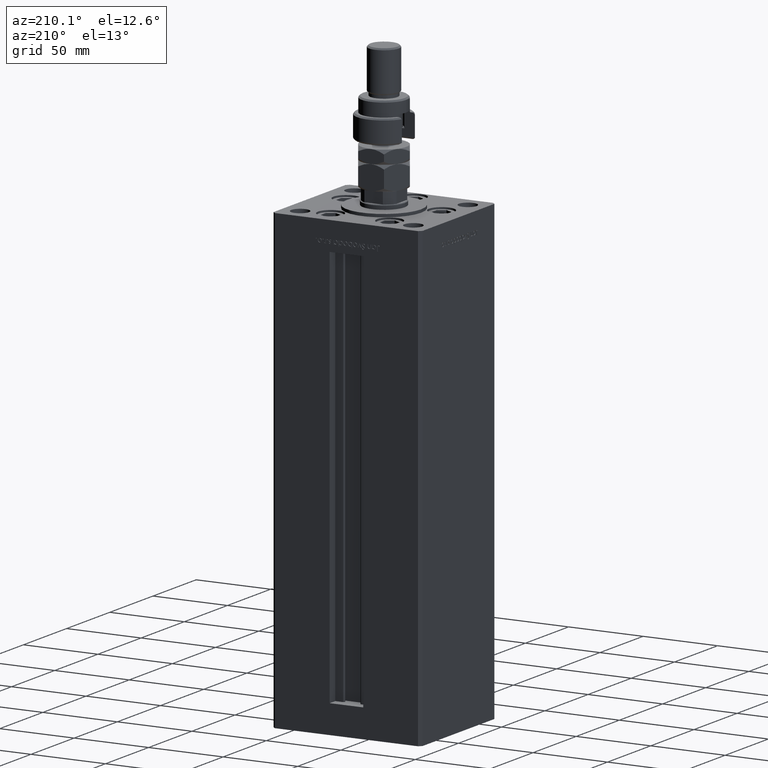
[diagram: clean part render]
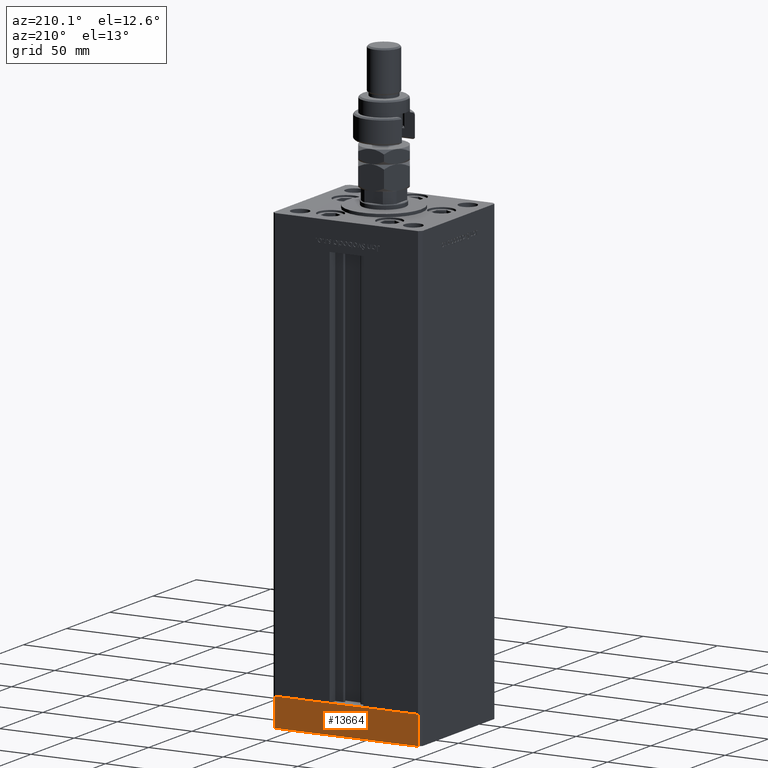
[diagram: same view with one face highlighted and labeled with its STEP entity id]
A machine part, auxiliary view. The second image highlights one B-rep face of the part: STEP entity #13664.
In plain terms, the highlighted planar face has unit normal (0, 1, 0).
Its self-contained STEP definition (entity closure, byte-faithful):
#1109 = VERTEX_POINT ( 'NONE', #46356 ) ;
#3009 = CARTESIAN_POINT ( 'NONE',  ( 47.99999999999990763, 43.50000000000000000, 0.000000000000000000 ) ) ;
#6971 = ORIENTED_EDGE ( 'NONE', *, *, #50419, .T. ) ;
#7246 = DIRECTION ( 'NONE',  ( 0.000000000000000000, 0.000000000000000000, 1.000000000000000000 ) ) ;
#8392 = DIRECTION ( 'NONE',  ( 0.000000000000000000, 0.000000000000000000, 1.000000000000000000 ) ) ;
#10162 = DIRECTION ( 'NONE',  ( -1.000000000000000000, -3.614007241618350743E-16, 0.000000000000000000 ) ) ;
#10446 = EDGE_LOOP ( 'NONE', ( #10916, #43528, #41807, #6971 ) ) ;
#10916 = ORIENTED_EDGE ( 'NONE', *, *, #13170, .F. ) ;
#11150 = DIRECTION ( 'NONE',  ( -1.000000000000000000, -3.614007241618350743E-16, 0.000000000000000000 ) ) ;
#12725 = VECTOR ( 'NONE', #7246, 1000.000000000000000 ) ;
#13170 = EDGE_CURVE ( 'NONE', #1109, #22516, #23921, .T. ) ;
#13664 = ADVANCED_FACE ( 'NONE', ( #21884 ), #52443, .T. ) ;
#15613 = LINE ( 'NONE', #41176, #28782 ) ;
#15662 = LINE ( 'NONE', #54302, #31486 ) ;
#16111 = DIRECTION ( 'NONE',  ( -1.000000000000000000, -3.614007241618350743E-16, 0.000000000000000000 ) ) ;
#17417 = CARTESIAN_POINT ( 'NONE',  ( 47.99999999999990763, 43.50000000000000000, -19.00000000000000000 ) ) ;
#17905 = VERTEX_POINT ( 'NONE', #17417 ) ;
#21884 = FACE_OUTER_BOUND ( 'NONE', #10446, .T. ) ;
#22231 = EDGE_CURVE ( 'NONE', #17905, #53687, #15613, .T. ) ;
#22516 = VERTEX_POINT ( 'NONE', #23608 ) ;
#23608 = CARTESIAN_POINT ( 'NONE',  ( -48.00000000000000711, 43.49999999999996447, 0.000000000000000000 ) ) ;
#23921 = LINE ( 'NONE', #3009, #42778 ) ;
#26610 = CARTESIAN_POINT ( 'NONE',  ( 47.99999999999990763, 43.50000000000000000, -19.00000000000000000 ) ) ;
#27883 = CARTESIAN_POINT ( 'NONE',  ( 47.99999999999990763, 43.50000000000000000, -19.00000000000000000 ) ) ;
#28782 = VECTOR ( 'NONE', #11150, 1000.000000000000000 ) ;
#31486 = VECTOR ( 'NONE', #8392, 1000.000000000000000 ) ;
#35507 = DIRECTION ( 'NONE',  ( -3.614007241618350743E-16, 1.000000000000000000, 0.000000000000000000 ) ) ;
#38392 = AXIS2_PLACEMENT_3D ( 'NONE', #26610, #35507, #10162 ) ;
#41176 = CARTESIAN_POINT ( 'NONE',  ( 47.99999999999990763, 43.50000000000000000, -19.00000000000000000 ) ) ;
#41807 = ORIENTED_EDGE ( 'NONE', *, *, #22231, .T. ) ;
#42778 = VECTOR ( 'NONE', #16111, 1000.000000000000000 ) ;
#43528 = ORIENTED_EDGE ( 'NONE', *, *, #48247, .F. ) ;
#46356 = CARTESIAN_POINT ( 'NONE',  ( 47.99999999999990763, 43.50000000000000000, 0.000000000000000000 ) ) ;
#47668 = CARTESIAN_POINT ( 'NONE',  ( -48.00000000000000711, 43.49999999999996447, -19.00000000000000000 ) ) ;
#48247 = EDGE_CURVE ( 'NONE', #17905, #1109, #53719, .T. ) ;
#50419 = EDGE_CURVE ( 'NONE', #53687, #22516, #15662, .T. ) ;
#52443 = PLANE ( 'NONE',  #38392 ) ;
#53687 = VERTEX_POINT ( 'NONE', #47668 ) ;
#53719 = LINE ( 'NONE', #27883, #12725 ) ;
#54302 = CARTESIAN_POINT ( 'NONE',  ( -48.00000000000000711, 43.49999999999996447, -19.00000000000000000 ) ) ;